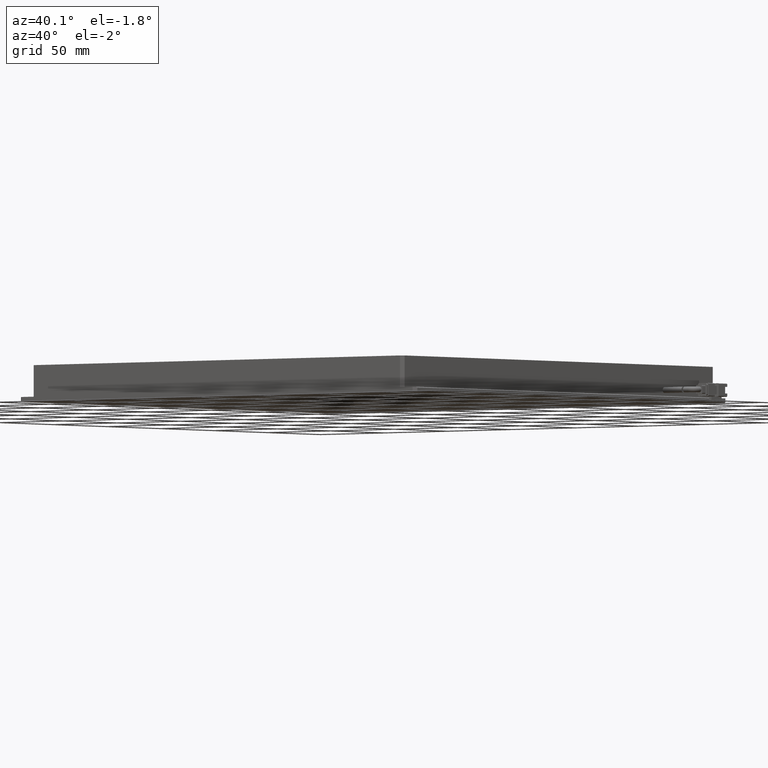
[diagram: clean part render]
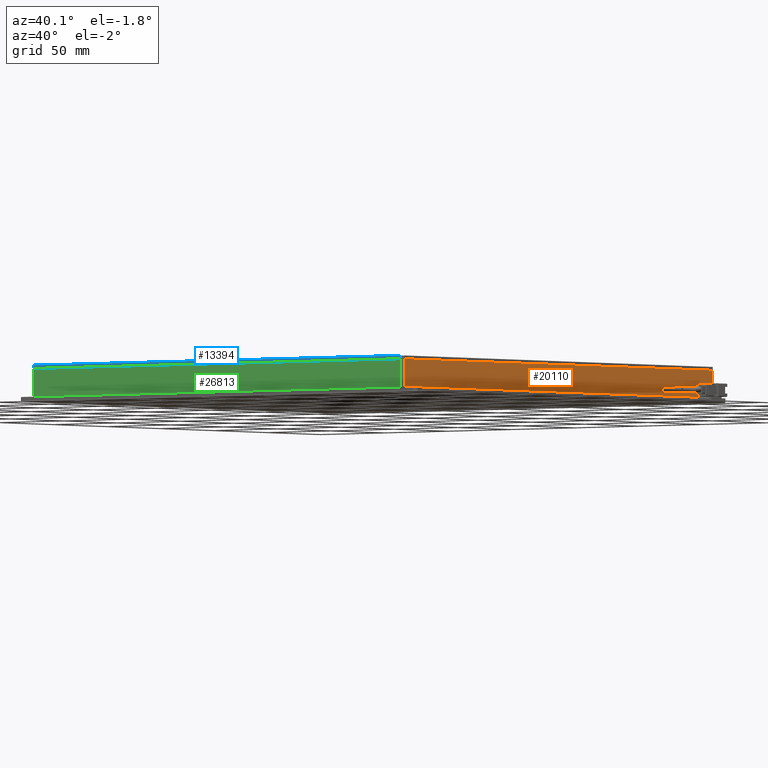
[diagram: same view with three faces highlighted in distinct colors, each labeled with its STEP entity id]
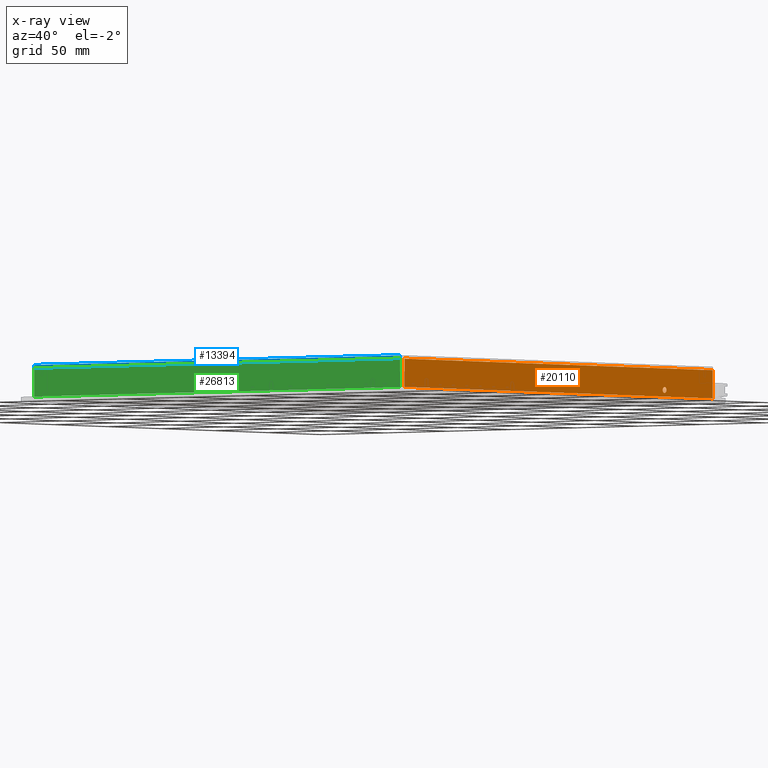
[diagram: x-ray of the same camera — body ghosted, the three highlighted faces saturated]
A machine part, auxiliary view with three faces highlighted in distinct colors.
The next image is the same camera in x-ray (body ghosted, the three faces saturated) — at least one of them is partly hidden behind the body in this view.
Their STEP definitions:

[orange] entity #20110 — the highlighted planar face has unit normal (-1, 0, 0).
#20 = VECTOR ( 'NONE', #253, 1000.000000000000000 ) ;
#253 = DIRECTION ( 'NONE',  ( 0.0000000000000000000, 0.0000000000000000000, 1.000000000000000000 ) ) ;
#287 = ORIENTED_EDGE ( 'NONE', *, *, #14492, .F. ) ;
#326 = ORIENTED_EDGE ( 'NONE', *, *, #18534, .T. ) ;
#1632 = PLANE ( 'NONE',  #13225 ) ;
#2010 = DIRECTION ( 'NONE',  ( -0.0000000000000000000, 1.000000000000000000, 0.0000000000000000000 ) ) ;
#2318 = CARTESIAN_POINT ( 'NONE',  ( 178.9193228736581900, 112.2698045692266600, -2.750000000028195200 ) ) ;
#2673 = ORIENTED_EDGE ( 'NONE', *, *, #14456, .F. ) ;
#3064 = CARTESIAN_POINT ( 'NONE',  ( 178.9193228736581900, 112.2698045692266600, -4.500000000028197000 ) ) ;
#3731 = AXIS2_PLACEMENT_3D ( 'NONE', #3064, #18138, #5212 ) ;
#5212 = DIRECTION ( 'NONE',  ( 0.0000000000000000000, 0.0000000000000000000, 1.000000000000000000 ) ) ;
#5569 = ORIENTED_EDGE ( 'NONE', *, *, #13482, .F. ) ;
#6108 = CIRCLE ( 'NONE', #12408, 1.750000000000001600 ) ;
#6368 = LINE ( 'NONE', #19523, #20 ) ;
#6482 = EDGE_LOOP ( 'NONE', ( #5569, #19979, #23275, #326 ) ) ;
#7646 = DIRECTION ( 'NONE',  ( -0.0000000000000000000, -1.000000000000000000, 0.0000000000000000000 ) ) ;
#7984 = CARTESIAN_POINT ( 'NONE',  ( 178.9193228736582500, -130.7301954307732200, 8.499999999971805700 ) ) ;
#8420 = FACE_OUTER_BOUND ( 'NONE', #6482, .T. ) ;
#8469 = VERTEX_POINT ( 'NONE', #9330 ) ;
#8839 = EDGE_CURVE ( 'NONE', #18200, #14967, #6368, .T. ) ;
#9330 = CARTESIAN_POINT ( 'NONE',  ( 178.9193228736582500, 157.2698045692267200, -8.500000000028194300 ) ) ;
#9524 = EDGE_LOOP ( 'NONE', ( #2673, #287 ) ) ;
#11912 = CARTESIAN_POINT ( 'NONE',  ( 178.9193228736581900, 112.2698045692266600, -4.500000000028197000 ) ) ;
#12408 = AXIS2_PLACEMENT_3D ( 'NONE', #11912, #26886, #14117 ) ;
#12438 = DIRECTION ( 'NONE',  ( -1.000000000000000000, 0.0000000000000000000, 0.0000000000000000000 ) ) ;
#13225 = AXIS2_PLACEMENT_3D ( 'NONE', #25235, #12438, #27401 ) ;
#13482 = EDGE_CURVE ( 'NONE', #14967, #20477, #18036, .T. ) ;
#13595 = VERTEX_POINT ( 'NONE', #21601 ) ;
#14117 = DIRECTION ( 'NONE',  ( 0.0000000000000000000, 0.0000000000000000000, 1.000000000000000000 ) ) ;
#14456 = EDGE_CURVE ( 'NONE', #16915, #13595, #19621, .T. ) ;
#14492 = EDGE_CURVE ( 'NONE', #13595, #16915, #6108, .T. ) ;
#14519 = CARTESIAN_POINT ( 'NONE',  ( 178.9193228736581900, 157.2698045692267200, 8.499999999971805700 ) ) ;
#14967 = VERTEX_POINT ( 'NONE', #7984 ) ;
#15039 = VECTOR ( 'NONE', #16658, 1000.000000000000000 ) ;
#16246 = CARTESIAN_POINT ( 'NONE',  ( 178.9193228736581900, 159.2698045692267500, -8.500000000028194300 ) ) ;
#16658 = DIRECTION ( 'NONE',  ( 0.0000000000000000000, 0.0000000000000000000, 1.000000000000000000 ) ) ;
#16724 = VECTOR ( 'NONE', #7646, 1000.000000000000000 ) ;
#16915 = VERTEX_POINT ( 'NONE', #2318 ) ;
#17344 = VECTOR ( 'NONE', #2010, 1000.000000000000000 ) ;
#18036 = LINE ( 'NONE', #19214, #17344 ) ;
#18138 = DIRECTION ( 'NONE',  ( 1.000000000000000000, 0.0000000000000000000, 0.0000000000000000000 ) ) ;
#18200 = VERTEX_POINT ( 'NONE', #21891 ) ;
#18534 = EDGE_CURVE ( 'NONE', #8469, #20477, #20053, .T. ) ;
#19214 = CARTESIAN_POINT ( 'NONE',  ( 178.9193228736581900, -132.7301954307733600, 8.499999999971805700 ) ) ;
#19436 = LINE ( 'NONE', #16246, #16724 ) ;
#19523 = CARTESIAN_POINT ( 'NONE',  ( 178.9193228736581900, -130.7301954307731900, 8.499999999971805700 ) ) ;
#19621 = CIRCLE ( 'NONE', #3731, 1.750000000000001600 ) ;
#19979 = ORIENTED_EDGE ( 'NONE', *, *, #8839, .F. ) ;
#20053 = LINE ( 'NONE', #14519, #15039 ) ;
#20110 = ADVANCED_FACE ( 'NONE', ( #24894, #8420 ), #1632, .F. ) ;
#20203 = CARTESIAN_POINT ( 'NONE',  ( 178.9193228736582500, 157.2698045692267200, 8.499999999971805700 ) ) ;
#20477 = VERTEX_POINT ( 'NONE', #20203 ) ;
#21601 = CARTESIAN_POINT ( 'NONE',  ( 178.9193228736581900, 112.2698045692266600, -6.250000000028197900 ) ) ;
#21891 = CARTESIAN_POINT ( 'NONE',  ( 178.9193228736582500, -130.7301954307732200, -8.500000000028194300 ) ) ;
#22371 = EDGE_CURVE ( 'NONE', #8469, #18200, #19436, .T. ) ;
#23275 = ORIENTED_EDGE ( 'NONE', *, *, #22371, .F. ) ;
#24894 = FACE_BOUND ( 'NONE', #9524, .T. ) ;
#25235 = CARTESIAN_POINT ( 'NONE',  ( 178.9193228736581900, 159.2698045692267500, 8.499999999971805700 ) ) ;
#26886 = DIRECTION ( 'NONE',  ( 1.000000000000000000, 0.0000000000000000000, 0.0000000000000000000 ) ) ;
#27401 = DIRECTION ( 'NONE',  ( 0.0000000000000000000, 0.0000000000000000000, 1.000000000000000000 ) ) ;

[blue] entity #13394 — the highlighted planar face has unit normal (0, 1, 0).
#660 = DIRECTION ( 'NONE',  ( 1.000000000000000000, -0.0000000000000000000, -0.0000000000000000000 ) ) ;
#669 = EDGE_CURVE ( 'NONE', #1196, #22257, #13400, .T. ) ;
#1196 = VERTEX_POINT ( 'NONE', #13293 ) ;
#2200 = DIRECTION ( 'NONE',  ( 0.0000000000000000000, 0.0000000000000000000, 1.000000000000000000 ) ) ;
#2515 = ORIENTED_EDGE ( 'NONE', *, *, #4010, .T. ) ;
#3325 = CARTESIAN_POINT ( 'NONE',  ( -111.0806771263419000, -132.7301954307733900, 10.49999999997180600 ) ) ;
#4010 = EDGE_CURVE ( 'NONE', #4407, #1196, #18769, .T. ) ;
#4407 = VERTEX_POINT ( 'NONE', #23362 ) ;
#5425 = CARTESIAN_POINT ( 'NONE',  ( 176.9193228736581900, -132.7301954307733600, 10.49999999997180600 ) ) ;
#6094 = DIRECTION ( 'NONE',  ( 0.0000000000000000000, 1.000000000000000000, 0.0000000000000000000 ) ) ;
#6292 = CARTESIAN_POINT ( 'NONE',  ( -111.0806771263419000, -132.7301954307733900, 10.49999999997180600 ) ) ;
#7933 = VECTOR ( 'NONE', #25602, 1000.000000000000000 ) ;
#8935 = ORIENTED_EDGE ( 'NONE', *, *, #22246, .F. ) ;
#9225 = FACE_OUTER_BOUND ( 'NONE', #26272, .T. ) ;
#12463 = ORIENTED_EDGE ( 'NONE', *, *, #23944, .F. ) ;
#12528 = CARTESIAN_POINT ( 'NONE',  ( -113.0806771263418400, -132.7301954307733900, 8.499999999971805700 ) ) ;
#13293 = CARTESIAN_POINT ( 'NONE',  ( 176.9193228736581600, -132.7301954307733900, 8.499999999971805700 ) ) ;
#13348 = ORIENTED_EDGE ( 'NONE', *, *, #669, .T. ) ;
#13394 = ADVANCED_FACE ( 'NONE', ( #9225 ), #18954, .F. ) ;
#13400 = LINE ( 'NONE', #5425, #18417 ) ;
#13645 = CARTESIAN_POINT ( 'NONE',  ( 176.9193228736582200, -132.7301954307733600, 10.49999999997180600 ) ) ;
#15660 = VERTEX_POINT ( 'NONE', #6292 ) ;
#16101 = VECTOR ( 'NONE', #660, 1000.000000000000000 ) ;
#16752 = LINE ( 'NONE', #24277, #16101 ) ;
#18417 = VECTOR ( 'NONE', #2200, 1000.000000000000000 ) ;
#18769 = LINE ( 'NONE', #12528, #7933 ) ;
#18878 = VECTOR ( 'NONE', #22639, 1000.000000000000000 ) ;
#18954 = PLANE ( 'NONE',  #25636 ) ;
#19055 = CARTESIAN_POINT ( 'NONE',  ( -113.0806771263418400, -132.7301954307733900, 10.49999999997180600 ) ) ;
#21168 = DIRECTION ( 'NONE',  ( -1.000000000000000000, 0.0000000000000000000, 0.0000000000000000000 ) ) ;
#22246 = EDGE_CURVE ( 'NONE', #15660, #22257, #16752, .T. ) ;
#22257 = VERTEX_POINT ( 'NONE', #13645 ) ;
#22639 = DIRECTION ( 'NONE',  ( 0.0000000000000000000, 0.0000000000000000000, 1.000000000000000000 ) ) ;
#23362 = CARTESIAN_POINT ( 'NONE',  ( -111.0806771263419000, -132.7301954307733900, 8.499999999971805700 ) ) ;
#23944 = EDGE_CURVE ( 'NONE', #4407, #15660, #24533, .T. ) ;
#24277 = CARTESIAN_POINT ( 'NONE',  ( -113.0806771263418400, -132.7301954307733900, 10.49999999997180600 ) ) ;
#24533 = LINE ( 'NONE', #3325, #18878 ) ;
#25602 = DIRECTION ( 'NONE',  ( 1.000000000000000000, 0.0000000000000000000, 0.0000000000000000000 ) ) ;
#25636 = AXIS2_PLACEMENT_3D ( 'NONE', #19055, #6094, #21168 ) ;
#26272 = EDGE_LOOP ( 'NONE', ( #8935, #12463, #2515, #13348 ) ) ;

[green] entity #26813 — the highlighted planar face has unit normal (0, 1, -0).
#32 = ORIENTED_EDGE ( 'NONE', *, *, #1919, .F. ) ;
#756 = EDGE_CURVE ( 'NONE', #9127, #3214, #9967, .T. ) ;
#1919 = EDGE_CURVE ( 'NONE', #9877, #17704, #21268, .T. ) ;
#2450 = ORIENTED_EDGE ( 'NONE', *, *, #756, .F. ) ;
#2692 = VECTOR ( 'NONE', #22143, 1000.000000000000000 ) ;
#3073 = EDGE_CURVE ( 'NONE', #9877, #3214, #8369, .T. ) ;
#3214 = VERTEX_POINT ( 'NONE', #10626 ) ;
#3743 = CARTESIAN_POINT ( 'NONE',  ( 176.9193228736579000, -132.7301954307733900, 8.499999999971805700 ) ) ;
#3800 = EDGE_CURVE ( 'NONE', #9127, #17704, #22745, .T. ) ;
#4918 = VECTOR ( 'NONE', #14445, 1000.000000000000000 ) ;
#7532 = ORIENTED_EDGE ( 'NONE', *, *, #3800, .T. ) ;
#8369 = LINE ( 'NONE', #23567, #2692 ) ;
#8460 = CARTESIAN_POINT ( 'NONE',  ( -113.0806771263418400, -132.7301954307733600, 8.499999999971805700 ) ) ;
#8864 = CARTESIAN_POINT ( 'NONE',  ( -113.0806771263418400, -132.7301954307733600, 8.499999999971805700 ) ) ;
#8955 = DIRECTION ( 'NONE',  ( 1.000000000000000000, 0.0000000000000000000, -0.0000000000000000000 ) ) ;
#9127 = VERTEX_POINT ( 'NONE', #26854 ) ;
#9877 = VERTEX_POINT ( 'NONE', #25679 ) ;
#9967 = LINE ( 'NONE', #14695, #4918 ) ;
#10626 = CARTESIAN_POINT ( 'NONE',  ( -111.0806771263418400, -132.7301954307733600, -8.500000000028194300 ) ) ;
#10647 = DIRECTION ( 'NONE',  ( -1.000000000000000000, 9.505334114941411000E-017, 0.0000000000000000000 ) ) ;
#12390 = ORIENTED_EDGE ( 'NONE', *, *, #3073, .T. ) ;
#12469 = EDGE_LOOP ( 'NONE', ( #32, #12390, #2450, #7532 ) ) ;
#13078 = AXIS2_PLACEMENT_3D ( 'NONE', #8460, #23497, #10647 ) ;
#13299 = FACE_OUTER_BOUND ( 'NONE', #12469, .T. ) ;
#14445 = DIRECTION ( 'NONE',  ( -1.000000000000000000, 9.505334114941411000E-017, 0.0000000000000000000 ) ) ;
#14695 = CARTESIAN_POINT ( 'NONE',  ( -113.0806771263418400, -132.7301954307733600, -8.500000000028194300 ) ) ;
#16529 = CARTESIAN_POINT ( 'NONE',  ( 176.9193228736580700, -132.7301954307733900, 8.499999999971805700 ) ) ;
#16615 = DIRECTION ( 'NONE',  ( 0.0000000000000000000, 0.0000000000000000000, 1.000000000000000000 ) ) ;
#17096 = VECTOR ( 'NONE', #16615, 1000.000000000000000 ) ;
#17704 = VERTEX_POINT ( 'NONE', #3743 ) ;
#21268 = LINE ( 'NONE', #8864, #26940 ) ;
#22143 = DIRECTION ( 'NONE',  ( -0.0000000000000000000, 0.0000000000000000000, -1.000000000000000000 ) ) ;
#22745 = LINE ( 'NONE', #16529, #17096 ) ;
#23497 = DIRECTION ( 'NONE',  ( 9.505334114941411000E-017, 1.000000000000000000, -0.0000000000000000000 ) ) ;
#23567 = CARTESIAN_POINT ( 'NONE',  ( -111.0806771263418400, -132.7301954307733600, 8.499999999971805700 ) ) ;
#25679 = CARTESIAN_POINT ( 'NONE',  ( -111.0806771263418400, -132.7301954307733600, 8.499999999971805700 ) ) ;
#26813 = ADVANCED_FACE ( 'NONE', ( #13299 ), #27611, .F. ) ;
#26854 = CARTESIAN_POINT ( 'NONE',  ( 176.9193228736579600, -132.7301954307734200, -8.500000000028194300 ) ) ;
#26940 = VECTOR ( 'NONE', #8955, 1000.000000000000000 ) ;
#27611 = PLANE ( 'NONE',  #13078 ) ;